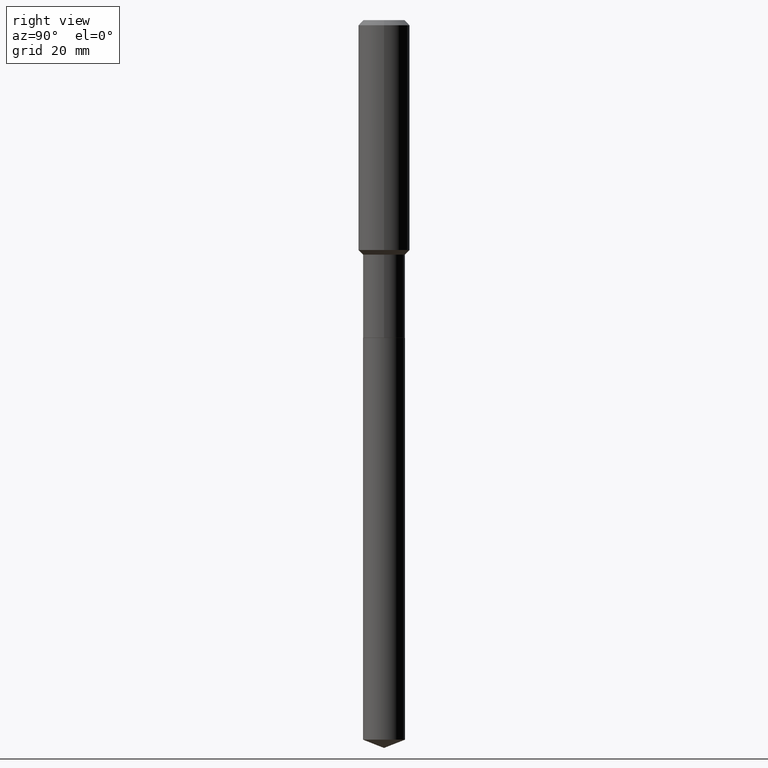
[diagram: clean part render]
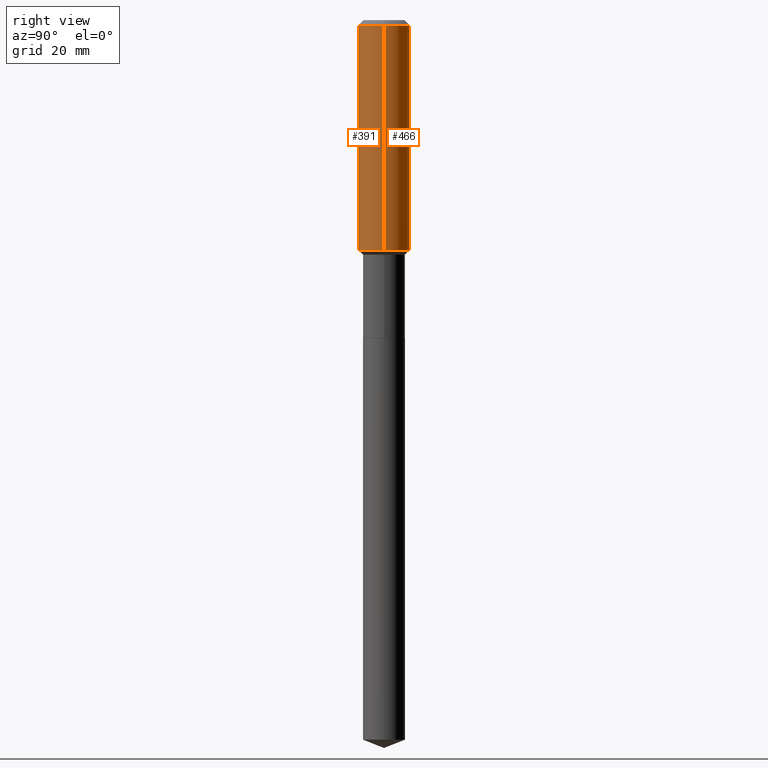
[diagram: same view with one multi-face feature highlighted, each face labeled with its STEP entity id]
A machine part, right view. The highlighted faces form ONE feature: a constant-radius fillet chain: 2 tangent blend faces with common blend radius 5 mm. The faces share edges in the B-rep.
Their STEP definitions:
[1] entity #391 (Cylinder):
#1 = DIRECTION ( 'NONE',  ( -2.445468806185136597E-29, 3.491481338843145583E-15, 1.000000000000000000 ) ) ;
#3 = CIRCLE ( 'NONE', #341, 0.1968500000000002192 ) ;
#4 = FACE_OUTER_BOUND ( 'NONE', #14, .T. ) ;
#7 = DIRECTION ( 'NONE',  ( -2.445468806185136597E-29, 3.491481338843145583E-15, 1.000000000000000000 ) ) ;
#14 = EDGE_LOOP ( 'NONE', ( #458, #60, #225, #209 ) ) ;
#48 = DIRECTION ( 'NONE',  ( -2.445468806185136877E-29, 3.491481338843145188E-15, 1.000000000000000000 ) ) ;
#60 = ORIENTED_EDGE ( 'NONE', *, *, #474, .T. ) ;
#72 = VERTEX_POINT ( 'NONE', #73 ) ;
#73 = CARTESIAN_POINT ( 'NONE',  ( -0.1968500000000000250, -1.753790040311104889E-15, -0.03937000000000026589 ) ) ;
#80 = CARTESIAN_POINT ( 'NONE',  ( 0.000000000000000000, 0.000000000000000000, 0.000000000000000000 ) ) ;
#93 = CARTESIAN_POINT ( 'NONE',  ( 0.1968500000000001082, -1.374596203102542397E-15, 9.598753983154305062E-30 ) ) ;
#94 = VERTEX_POINT ( 'NONE', #112 ) ;
#112 = CARTESIAN_POINT ( 'NONE',  ( 0.1968500000000002192, -7.542123414102014930E-15, -1.766449999999998965 ) ) ;
#128 = LINE ( 'NONE', #93, #282 ) ;
#133 = VERTEX_POINT ( 'NONE', #289 ) ;
#150 = AXIS2_PLACEMENT_3D ( 'NONE', #80, #1, #159 ) ;
#156 = DIRECTION ( 'NONE',  ( 1.000000000000000000, -6.982962677686265922E-15, 0.000000000000000000 ) ) ;
#159 = DIRECTION ( 'NONE',  ( 1.000000000000000000, -6.982962677686266711E-15, 4.876176775795935793E-29 ) ) ;
#173 = AXIS2_PLACEMENT_3D ( 'NONE', #197, #490, #156 ) ;
#186 = CARTESIAN_POINT ( 'NONE',  ( 0.1968500000000000250, -1.512055823412797189E-15, -0.03937000000000026589 ) ) ;
#197 = CARTESIAN_POINT ( 'NONE',  ( 9.627810689950948900E-31, -1.374596203102555561E-16, -0.03937000000000026589 ) ) ;
#199 = CYLINDRICAL_SURFACE ( 'NONE', #150, 0.1968500000000001082 ) ;
#204 = CARTESIAN_POINT ( 'NONE',  ( 4.319798372685731451E-29, -6.167527210999470955E-15, -1.766449999999998965 ) ) ;
#209 = ORIENTED_EDGE ( 'NONE', *, *, #377, .F. ) ;
#212 = DIRECTION ( 'NONE',  ( 1.000000000000000000, -6.982962677686265922E-15, 0.000000000000000000 ) ) ;
#225 = ORIENTED_EDGE ( 'NONE', *, *, #444, .T. ) ;
#234 = DIRECTION ( 'NONE',  ( -2.445468806185136877E-29, 3.491481338843145188E-15, 1.000000000000000000 ) ) ;
#235 = VERTEX_POINT ( 'NONE', #186 ) ;
#257 = EDGE_CURVE ( 'NONE', #133, #72, #305, .T. ) ;
#282 = VECTOR ( 'NONE', #48, 39.37007874015748143 ) ;
#289 = CARTESIAN_POINT ( 'NONE',  ( -0.1968500000000002192, -4.768823835655711590E-15, -1.766449999999998965 ) ) ;
#305 = LINE ( 'NONE', #457, #428 ) ;
#341 = AXIS2_PLACEMENT_3D ( 'NONE', #204, #7, #212 ) ;
#377 = EDGE_CURVE ( 'NONE', #72, #235, #413, .T. ) ;
#391 = ADVANCED_FACE ( 'NONE', ( #4 ), #199, .T. ) ;
#413 = CIRCLE ( 'NONE', #173, 0.1968500000000000250 ) ;
#428 = VECTOR ( 'NONE', #234, 39.37007874015748143 ) ;
#444 = EDGE_CURVE ( 'NONE', #94, #235, #128, .T. ) ;
#457 = CARTESIAN_POINT ( 'NONE',  ( -0.1968500000000001082, 1.398703375343757985E-15, -9.682923725166787881E-30 ) ) ;
#458 = ORIENTED_EDGE ( 'NONE', *, *, #257, .F. ) ;
#474 = EDGE_CURVE ( 'NONE', #133, #94, #3, .T. ) ;
#490 = DIRECTION ( 'NONE',  ( -2.445468806185136597E-29, 3.491481338843145583E-15, 1.000000000000000000 ) ) ;
[2] entity #466 (Cylinder):
#17 = AXIS2_PLACEMENT_3D ( 'NONE', #168, #90, #316 ) ;
#46 = CYLINDRICAL_SURFACE ( 'NONE', #17, 0.1968500000000001082 ) ;
#48 = DIRECTION ( 'NONE',  ( -2.445468806185136877E-29, 3.491481338843145188E-15, 1.000000000000000000 ) ) ;
#68 = DIRECTION ( 'NONE',  ( -2.445468806185136597E-29, 3.491481338843145583E-15, 1.000000000000000000 ) ) ;
#72 = VERTEX_POINT ( 'NONE', #73 ) ;
#73 = CARTESIAN_POINT ( 'NONE',  ( -0.1968500000000000250, -1.753790040311104889E-15, -0.03937000000000026589 ) ) ;
#77 = CIRCLE ( 'NONE', #311, 0.1968500000000002192 ) ;
#88 = EDGE_LOOP ( 'NONE', ( #227, #296, #95, #315 ) ) ;
#90 = DIRECTION ( 'NONE',  ( -2.445468806185136597E-29, 3.491481338843145583E-15, 1.000000000000000000 ) ) ;
#93 = CARTESIAN_POINT ( 'NONE',  ( 0.1968500000000001082, -1.374596203102542397E-15, 9.598753983154305062E-30 ) ) ;
#94 = VERTEX_POINT ( 'NONE', #112 ) ;
#95 = ORIENTED_EDGE ( 'NONE', *, *, #129, .F. ) ;
#97 = FACE_OUTER_BOUND ( 'NONE', #88, .T. ) ;
#103 = CARTESIAN_POINT ( 'NONE',  ( 4.319798372685731451E-29, -6.167527210999470955E-15, -1.766449999999998965 ) ) ;
#112 = CARTESIAN_POINT ( 'NONE',  ( 0.1968500000000002192, -7.542123414102014930E-15, -1.766449999999998965 ) ) ;
#128 = LINE ( 'NONE', #93, #282 ) ;
#129 = EDGE_CURVE ( 'NONE', #235, #72, #281, .T. ) ;
#133 = VERTEX_POINT ( 'NONE', #289 ) ;
#136 = AXIS2_PLACEMENT_3D ( 'NONE', #363, #366, #226 ) ;
#168 = CARTESIAN_POINT ( 'NONE',  ( 0.000000000000000000, 0.000000000000000000, 0.000000000000000000 ) ) ;
#178 = EDGE_CURVE ( 'NONE', #94, #133, #77, .T. ) ;
#186 = CARTESIAN_POINT ( 'NONE',  ( 0.1968500000000000250, -1.512055823412797189E-15, -0.03937000000000026589 ) ) ;
#224 = DIRECTION ( 'NONE',  ( 1.000000000000000000, -6.982962677686265922E-15, 0.000000000000000000 ) ) ;
#226 = DIRECTION ( 'NONE',  ( 1.000000000000000000, -6.982962677686265922E-15, 0.000000000000000000 ) ) ;
#227 = ORIENTED_EDGE ( 'NONE', *, *, #178, .T. ) ;
#234 = DIRECTION ( 'NONE',  ( -2.445468806185136877E-29, 3.491481338843145188E-15, 1.000000000000000000 ) ) ;
#235 = VERTEX_POINT ( 'NONE', #186 ) ;
#257 = EDGE_CURVE ( 'NONE', #133, #72, #305, .T. ) ;
#281 = CIRCLE ( 'NONE', #136, 0.1968500000000000250 ) ;
#282 = VECTOR ( 'NONE', #48, 39.37007874015748143 ) ;
#289 = CARTESIAN_POINT ( 'NONE',  ( -0.1968500000000002192, -4.768823835655711590E-15, -1.766449999999998965 ) ) ;
#296 = ORIENTED_EDGE ( 'NONE', *, *, #257, .T. ) ;
#305 = LINE ( 'NONE', #457, #428 ) ;
#311 = AXIS2_PLACEMENT_3D ( 'NONE', #103, #68, #224 ) ;
#315 = ORIENTED_EDGE ( 'NONE', *, *, #444, .F. ) ;
#316 = DIRECTION ( 'NONE',  ( 1.000000000000000000, -6.982962677686266711E-15, 4.876176775795935793E-29 ) ) ;
#363 = CARTESIAN_POINT ( 'NONE',  ( 9.627810689950948900E-31, -1.374596203102555561E-16, -0.03937000000000026589 ) ) ;
#366 = DIRECTION ( 'NONE',  ( -2.445468806185136597E-29, 3.491481338843145583E-15, 1.000000000000000000 ) ) ;
#428 = VECTOR ( 'NONE', #234, 39.37007874015748143 ) ;
#444 = EDGE_CURVE ( 'NONE', #94, #235, #128, .T. ) ;
#457 = CARTESIAN_POINT ( 'NONE',  ( -0.1968500000000001082, 1.398703375343757985E-15, -9.682923725166787881E-30 ) ) ;
#466 = ADVANCED_FACE ( 'NONE', ( #97 ), #46, .T. ) ;